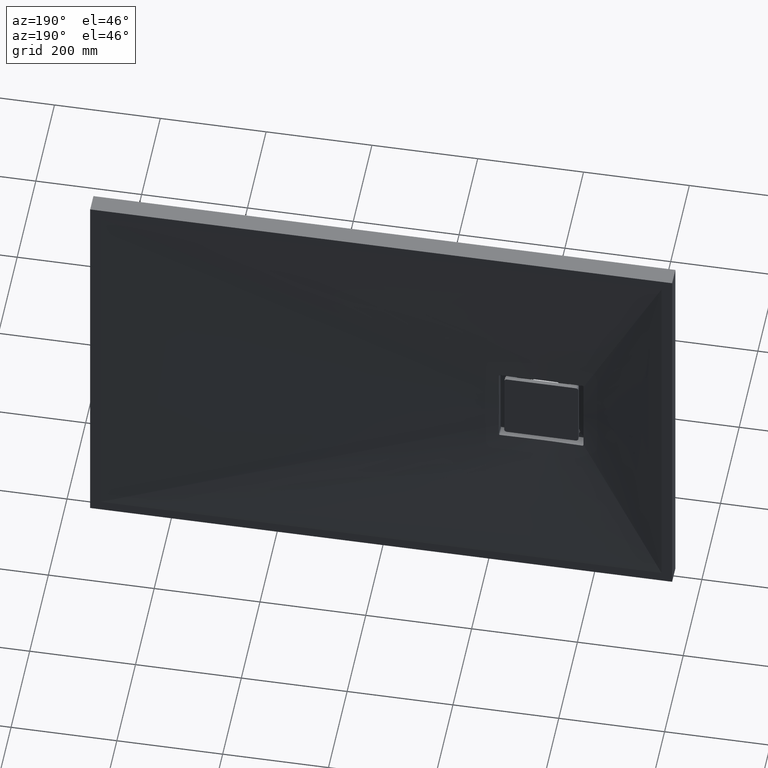
[diagram: clean part render]
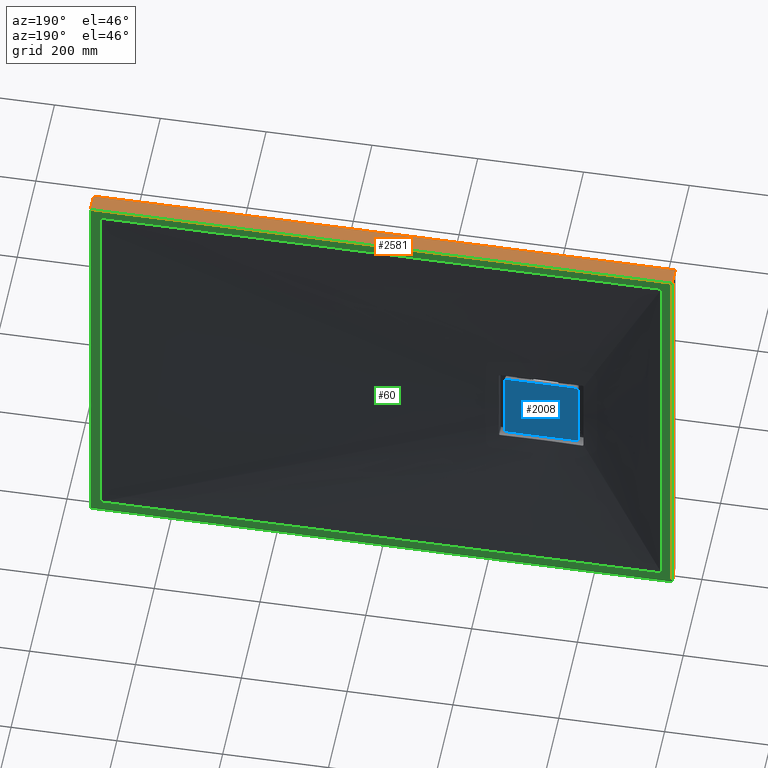
[diagram: same view with three faces highlighted in distinct colors, each labeled with its STEP entity id]
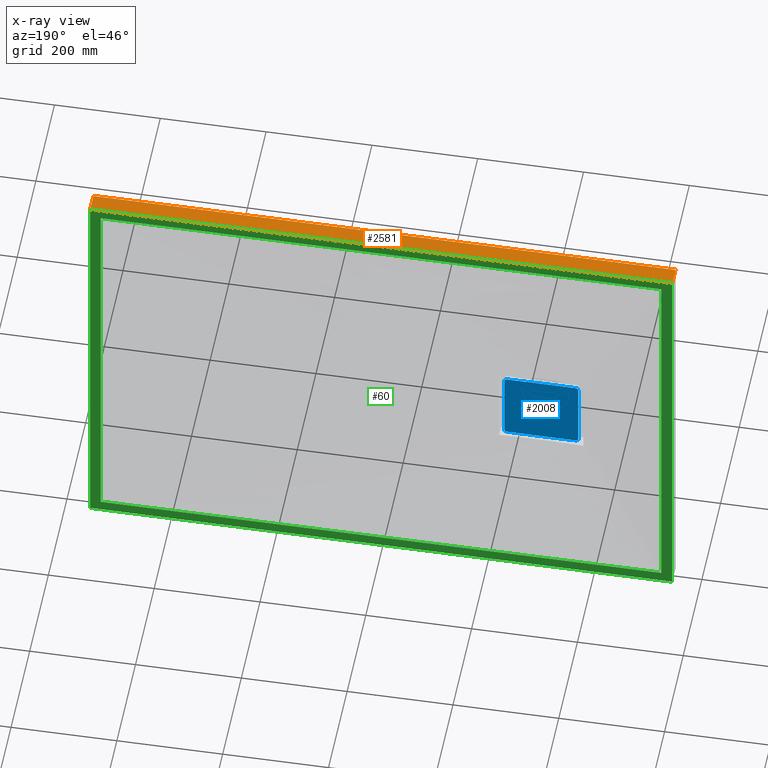
[diagram: x-ray of the same camera — body ghosted, the three highlighted faces saturated]
A machine part, auxiliary view with three faces highlighted in distinct colors.
The next image is the same camera in x-ray (body ghosted, the three faces saturated) — at least one of them is partly hidden behind the body in this view.
Their STEP definitions:

[orange] entity #2581 — the highlighted planar face has unit normal (0, 0, -1).
#209 = FACE_OUTER_BOUND ( 'NONE', #1620, .T. ) ;
#323 = CARTESIAN_POINT ( 'NONE',  ( -550.0000000000002300, 0.0000000000000000000, 400.0000000000001100 ) ) ;
#390 = VECTOR ( 'NONE', #1896, 1000.000000000000000 ) ;
#430 = LINE ( 'NONE', #914, #390 ) ;
#488 = CARTESIAN_POINT ( 'NONE',  ( -550.0000000000002300, 35.00000000000000000, 400.0000000000001100 ) ) ;
#549 = DIRECTION ( 'NONE',  ( 1.000000000000000000, 0.0000000000000000000, 0.0000000000000000000 ) ) ;
#600 = DIRECTION ( 'NONE',  ( -0.0000000000000000000, -1.000000000000000000, -0.0000000000000000000 ) ) ;
#914 = CARTESIAN_POINT ( 'NONE',  ( -550.0000000000002300, 35.00000000000000000, 400.0000000000001100 ) ) ;
#1162 = ORIENTED_EDGE ( 'NONE', *, *, #2722, .T. ) ;
#1450 = VERTEX_POINT ( 'NONE', #1609 ) ;
#1496 = CARTESIAN_POINT ( 'NONE',  ( 549.9999999999997700, 35.00000000000000000, 400.0000000000001100 ) ) ;
#1522 = VECTOR ( 'NONE', #549, 1000.000000000000000 ) ;
#1554 = VECTOR ( 'NONE', #600, 1000.000000000000000 ) ;
#1609 = CARTESIAN_POINT ( 'NONE',  ( -550.0000000000002300, 35.00000000000000000, 400.0000000000001100 ) ) ;
#1611 = EDGE_CURVE ( 'NONE', #1450, #1727, #430, .T. ) ;
#1620 = EDGE_LOOP ( 'NONE', ( #1162, #2019, #3139, #1754 ) ) ;
#1718 = CARTESIAN_POINT ( 'NONE',  ( -550.0000000000002300, 0.0000000000000000000, 400.0000000000001100 ) ) ;
#1727 = VERTEX_POINT ( 'NONE', #1496 ) ;
#1754 = ORIENTED_EDGE ( 'NONE', *, *, #2271, .T. ) ;
#1896 = DIRECTION ( 'NONE',  ( 1.000000000000000000, 0.0000000000000000000, 0.0000000000000000000 ) ) ;
#1993 = PLANE ( 'NONE',  #2815 ) ;
#2019 = ORIENTED_EDGE ( 'NONE', *, *, #3145, .F. ) ;
#2050 = DIRECTION ( 'NONE',  ( -1.000000000000000000, 0.0000000000000000000, -0.0000000000000000000 ) ) ;
#2093 = VERTEX_POINT ( 'NONE', #323 ) ;
#2245 = DIRECTION ( 'NONE',  ( 0.0000000000000000000, 0.0000000000000000000, -1.000000000000000000 ) ) ;
#2271 = EDGE_CURVE ( 'NONE', #1450, #2093, #2368, .T. ) ;
#2330 = VERTEX_POINT ( 'NONE', #3110 ) ;
#2368 = LINE ( 'NONE', #3186, #1554 ) ;
#2523 = LINE ( 'NONE', #2832, #2957 ) ;
#2581 = ADVANCED_FACE ( 'NONE', ( #209 ), #1993, .F. ) ;
#2722 = EDGE_CURVE ( 'NONE', #2093, #2330, #3079, .T. ) ;
#2815 = AXIS2_PLACEMENT_3D ( 'NONE', #488, #2245, #2050 ) ;
#2832 = CARTESIAN_POINT ( 'NONE',  ( 549.9999999999997700, 35.00000000000000000, 400.0000000000001100 ) ) ;
#2835 = DIRECTION ( 'NONE',  ( -0.0000000000000000000, -1.000000000000000000, -0.0000000000000000000 ) ) ;
#2957 = VECTOR ( 'NONE', #2835, 1000.000000000000000 ) ;
#3079 = LINE ( 'NONE', #1718, #1522 ) ;
#3110 = CARTESIAN_POINT ( 'NONE',  ( 549.9999999999997700, 0.0000000000000000000, 400.0000000000001100 ) ) ;
#3139 = ORIENTED_EDGE ( 'NONE', *, *, #1611, .F. ) ;
#3145 = EDGE_CURVE ( 'NONE', #1727, #2330, #2523, .T. ) ;
#3186 = CARTESIAN_POINT ( 'NONE',  ( -550.0000000000002300, 35.00000000000000000, 400.0000000000001100 ) ) ;

[blue] entity #2008 — the highlighted planar face has unit normal (0, -1, 0).
#111 = FACE_OUTER_BOUND ( 'NONE', #2211, .T. ) ;
#261 = CIRCLE ( 'NONE', #3230, 5.000000000000004400 ) ;
#299 = ORIENTED_EDGE ( 'NONE', *, *, #2445, .T. ) ;
#328 = LINE ( 'NONE', #2879, #334 ) ;
#334 = VECTOR ( 'NONE', #2366, 1000.000000000000000 ) ;
#361 = LINE ( 'NONE', #3189, #2247 ) ;
#363 = VECTOR ( 'NONE', #2110, 1000.000000000000000 ) ;
#368 = LINE ( 'NONE', #2427, #363 ) ;
#597 = DIRECTION ( 'NONE',  ( 0.0000000000000000000, 0.0000000000000000000, 1.000000000000000000 ) ) ;
#604 = DIRECTION ( 'NONE',  ( 0.0000000000000000000, 1.000000000000000000, 0.0000000000000000000 ) ) ;
#607 = CARTESIAN_POINT ( 'NONE',  ( -235.0000000000002600, 20.00000000000000000, 65.00000000000009900 ) ) ;
#619 = PLANE ( 'NONE',  #3073 ) ;
#694 = CARTESIAN_POINT ( 'NONE',  ( -235.0000000000002600, 20.00000000000000000, 70.00000000000009900 ) ) ;
#722 = CIRCLE ( 'NONE', #2377, 5.000000000000004400 ) ;
#799 = DIRECTION ( 'NONE',  ( 0.0000000000000000000, -0.0000000000000000000, -1.000000000000000000 ) ) ;
#802 = DIRECTION ( 'NONE',  ( 0.0000000000000000000, -1.000000000000000000, 0.0000000000000000000 ) ) ;
#817 = CARTESIAN_POINT ( 'NONE',  ( -365.0000000000002800, 20.00000000000000000, 65.00000000000011400 ) ) ;
#827 = EDGE_CURVE ( 'NONE', #2311, #1538, #973, .T. ) ;
#829 = CARTESIAN_POINT ( 'NONE',  ( -365.0000000000002800, 20.00000000000000000, 70.00000000000011400 ) ) ;
#876 = ORIENTED_EDGE ( 'NONE', *, *, #3039, .T. ) ;
#973 = CIRCLE ( 'NONE', #1858, 5.000000000000018700 ) ;
#1015 = DIRECTION ( 'NONE',  ( 0.0000000000000000000, 0.0000000000000000000, -1.000000000000000000 ) ) ;
#1180 = EDGE_CURVE ( 'NONE', #3025, #2650, #722, .T. ) ;
#1286 = CARTESIAN_POINT ( 'NONE',  ( -230.0000000000002600, 20.00000000000000000, 65.00000000000009900 ) ) ;
#1306 = CARTESIAN_POINT ( 'NONE',  ( -370.0000000000002800, 20.00000000000000000, 65.00000000000011400 ) ) ;
#1365 = CARTESIAN_POINT ( 'NONE',  ( -235.0000000000002600, 20.00000000000000000, -64.99999999999987200 ) ) ;
#1367 = CARTESIAN_POINT ( 'NONE',  ( -230.0000000000002600, 20.00000000000000000, 65.00000000000009900 ) ) ;
#1449 = ORIENTED_EDGE ( 'NONE', *, *, #1673, .T. ) ;
#1455 = CARTESIAN_POINT ( 'NONE',  ( -235.0000000000002600, 20.00000000000000000, -69.99999999999990100 ) ) ;
#1538 = VERTEX_POINT ( 'NONE', #1455 ) ;
#1642 = EDGE_CURVE ( 'NONE', #2650, #2370, #368, .T. ) ;
#1673 = EDGE_CURVE ( 'NONE', #1956, #2041, #328, .T. ) ;
#1858 = AXIS2_PLACEMENT_3D ( 'NONE', #1365, #3077, #3140 ) ;
#1956 = VERTEX_POINT ( 'NONE', #829 ) ;
#2008 = ADVANCED_FACE ( 'NONE', ( #111 ), #619, .F. ) ;
#2017 = ORIENTED_EDGE ( 'NONE', *, *, #1180, .T. ) ;
#2035 = EDGE_CURVE ( 'NONE', #2041, #3233, #261, .T. ) ;
#2041 = VERTEX_POINT ( 'NONE', #694 ) ;
#2110 = DIRECTION ( 'NONE',  ( -0.0000000000000000000, -0.0000000000000000000, 1.000000000000000000 ) ) ;
#2118 = CARTESIAN_POINT ( 'NONE',  ( -365.0000000000002800, 20.00000000000000000, -64.99999999999988600 ) ) ;
#2163 = CARTESIAN_POINT ( 'NONE',  ( -370.0000000000002800, 20.00000000000000000, -64.99999999999988600 ) ) ;
#2211 = EDGE_LOOP ( 'NONE', ( #299, #1449, #2410, #876, #2962, #3056, #2017, #2712 ) ) ;
#2212 = DIRECTION ( 'NONE',  ( 0.0000000000000000000, 1.000000000000000000, -0.0000000000000000000 ) ) ;
#2215 = DIRECTION ( 'NONE',  ( 0.0000000000000000000, 0.0000000000000000000, -1.000000000000000000 ) ) ;
#2247 = VECTOR ( 'NONE', #3174, 1000.000000000000000 ) ;
#2253 = LINE ( 'NONE', #1286, #2333 ) ;
#2256 = AXIS2_PLACEMENT_3D ( 'NONE', #2713, #2385, #1015 ) ;
#2268 = DIRECTION ( 'NONE',  ( 0.0000000000000000000, 0.0000000000000000000, -1.000000000000000000 ) ) ;
#2281 = CARTESIAN_POINT ( 'NONE',  ( -365.0000000000002800, 20.00000000000000000, -69.99999999999990100 ) ) ;
#2311 = VERTEX_POINT ( 'NONE', #3162 ) ;
#2333 = VECTOR ( 'NONE', #2268, 1000.000000000000000 ) ;
#2366 = DIRECTION ( 'NONE',  ( 1.000000000000000000, 0.0000000000000000000, -1.067522139062650400E-016 ) ) ;
#2370 = VERTEX_POINT ( 'NONE', #1306 ) ;
#2377 = AXIS2_PLACEMENT_3D ( 'NONE', #2118, #2212, #2215 ) ;
#2385 = DIRECTION ( 'NONE',  ( 0.0000000000000000000, 1.000000000000000000, -0.0000000000000000000 ) ) ;
#2410 = ORIENTED_EDGE ( 'NONE', *, *, #2035, .T. ) ;
#2427 = CARTESIAN_POINT ( 'NONE',  ( -370.0000000000002800, 20.00000000000000000, 65.00000000000011400 ) ) ;
#2445 = EDGE_CURVE ( 'NONE', #2370, #1956, #3115, .T. ) ;
#2562 = EDGE_CURVE ( 'NONE', #1538, #3025, #361, .T. ) ;
#2650 = VERTEX_POINT ( 'NONE', #2163 ) ;
#2712 = ORIENTED_EDGE ( 'NONE', *, *, #1642, .T. ) ;
#2713 = CARTESIAN_POINT ( 'NONE',  ( -365.0000000000002800, 20.00000000000000000, 65.00000000000011400 ) ) ;
#2879 = CARTESIAN_POINT ( 'NONE',  ( -365.0000000000002800, 20.00000000000000000, 70.00000000000011400 ) ) ;
#2962 = ORIENTED_EDGE ( 'NONE', *, *, #827, .T. ) ;
#3025 = VERTEX_POINT ( 'NONE', #2281 ) ;
#3039 = EDGE_CURVE ( 'NONE', #3233, #2311, #2253, .T. ) ;
#3056 = ORIENTED_EDGE ( 'NONE', *, *, #2562, .T. ) ;
#3073 = AXIS2_PLACEMENT_3D ( 'NONE', #817, #802, #799 ) ;
#3077 = DIRECTION ( 'NONE',  ( 0.0000000000000000000, 1.000000000000000000, -0.0000000000000000000 ) ) ;
#3115 = CIRCLE ( 'NONE', #2256, 5.000000000000004400 ) ;
#3140 = DIRECTION ( 'NONE',  ( 0.0000000000000000000, 0.0000000000000000000, -1.000000000000000000 ) ) ;
#3162 = CARTESIAN_POINT ( 'NONE',  ( -230.0000000000002600, 20.00000000000000000, -64.99999999999987200 ) ) ;
#3174 = DIRECTION ( 'NONE',  ( -1.000000000000000000, -0.0000000000000000000, -0.0000000000000000000 ) ) ;
#3189 = CARTESIAN_POINT ( 'NONE',  ( -365.0000000000002800, 20.00000000000000000, -69.99999999999990100 ) ) ;
#3230 = AXIS2_PLACEMENT_3D ( 'NONE', #607, #604, #597 ) ;
#3233 = VERTEX_POINT ( 'NONE', #1367 ) ;

[green] entity #60 — the highlighted planar face has unit normal (0, 1, 0).
#30 = LINE ( 'NONE', #826, #55 ) ;
#55 = VECTOR ( 'NONE', #2538, 1000.000000000000000 ) ;
#60 = ADVANCED_FACE ( 'NONE', ( #1369, #1350 ), #1559, .T. ) ;
#118 = ORIENTED_EDGE ( 'NONE', *, *, #3158, .F. ) ;
#151 = VECTOR ( 'NONE', #1552, 1000.000000000000000 ) ;
#159 = LINE ( 'NONE', #1551, #151 ) ;
#176 = CARTESIAN_POINT ( 'NONE',  ( -530.0000000000003400, 35.00000000000000000, -379.9999999999998900 ) ) ;
#184 = ORIENTED_EDGE ( 'NONE', *, *, #1611, .T. ) ;
#390 = VECTOR ( 'NONE', #1896, 1000.000000000000000 ) ;
#430 = LINE ( 'NONE', #914, #390 ) ;
#459 = VECTOR ( 'NONE', #803, 1000.000000000000000 ) ;
#735 = VECTOR ( 'NONE', #2433, 1000.000000000000000 ) ;
#765 = LINE ( 'NONE', #2453, #735 ) ;
#803 = DIRECTION ( 'NONE',  ( 1.460819769243627100E-016, 0.0000000000000000000, 1.000000000000000000 ) ) ;
#826 = CARTESIAN_POINT ( 'NONE',  ( -550.0000000000003400, 35.00000000000000000, -399.9999999999998900 ) ) ;
#914 = CARTESIAN_POINT ( 'NONE',  ( -550.0000000000002300, 35.00000000000000000, 400.0000000000001100 ) ) ;
#1011 = DIRECTION ( 'NONE',  ( -1.000000000000000000, 0.0000000000000000000, 0.0000000000000000000 ) ) ;
#1138 = LINE ( 'NONE', #1809, #459 ) ;
#1144 = EDGE_CURVE ( 'NONE', #1603, #1450, #765, .T. ) ;
#1222 = DIRECTION ( 'NONE',  ( -1.387778780781445700E-016, -0.0000000000000000000, -1.000000000000000000 ) ) ;
#1249 = CARTESIAN_POINT ( 'NONE',  ( 549.9999999999996600, 35.00000000000000000, -399.9999999999998900 ) ) ;
#1350 = FACE_OUTER_BOUND ( 'NONE', #1377, .T. ) ;
#1364 = CARTESIAN_POINT ( 'NONE',  ( 529.9999999999996600, 35.00000000000000000, -379.9999999999998900 ) ) ;
#1369 = FACE_BOUND ( 'NONE', #1427, .T. ) ;
#1377 = EDGE_LOOP ( 'NONE', ( #1843, #184, #3009, #1494 ) ) ;
#1407 = ORIENTED_EDGE ( 'NONE', *, *, #2743, .F. ) ;
#1427 = EDGE_LOOP ( 'NONE', ( #118, #2561, #1778, #1407 ) ) ;
#1438 = CARTESIAN_POINT ( 'NONE',  ( -550.0000000000003400, 35.00000000000000000, -399.9999999999998900 ) ) ;
#1450 = VERTEX_POINT ( 'NONE', #1609 ) ;
#1494 = ORIENTED_EDGE ( 'NONE', *, *, #3268, .T. ) ;
#1496 = CARTESIAN_POINT ( 'NONE',  ( 549.9999999999997700, 35.00000000000000000, 400.0000000000001100 ) ) ;
#1523 = DIRECTION ( 'NONE',  ( 0.0000000000000000000, 1.000000000000000000, 0.0000000000000000000 ) ) ;
#1548 = CARTESIAN_POINT ( 'NONE',  ( -550.0000000000002300, 35.00000000000000000, 400.0000000000001100 ) ) ;
#1551 = CARTESIAN_POINT ( 'NONE',  ( -530.0000000000002300, 35.00000000000000000, 380.0000000000001100 ) ) ;
#1552 = DIRECTION ( 'NONE',  ( 1.000000000000000000, 0.0000000000000000000, 0.0000000000000000000 ) ) ;
#1559 = PLANE ( 'NONE',  #2471 ) ;
#1587 = DIRECTION ( 'NONE',  ( 0.0000000000000000000, -0.0000000000000000000, 1.000000000000000000 ) ) ;
#1603 = VERTEX_POINT ( 'NONE', #1438 ) ;
#1609 = CARTESIAN_POINT ( 'NONE',  ( -550.0000000000002300, 35.00000000000000000, 400.0000000000001100 ) ) ;
#1611 = EDGE_CURVE ( 'NONE', #1450, #1727, #430, .T. ) ;
#1632 = VERTEX_POINT ( 'NONE', #1743 ) ;
#1649 = VERTEX_POINT ( 'NONE', #2664 ) ;
#1654 = VECTOR ( 'NONE', #1222, 1000.000000000000000 ) ;
#1704 = LINE ( 'NONE', #1249, #1654 ) ;
#1727 = VERTEX_POINT ( 'NONE', #1496 ) ;
#1743 = CARTESIAN_POINT ( 'NONE',  ( 529.9999999999997700, 35.00000000000000000, 380.0000000000001100 ) ) ;
#1778 = ORIENTED_EDGE ( 'NONE', *, *, #1935, .F. ) ;
#1788 = VERTEX_POINT ( 'NONE', #176 ) ;
#1809 = CARTESIAN_POINT ( 'NONE',  ( -530.0000000000003400, 35.00000000000000000, -379.9999999999998900 ) ) ;
#1843 = ORIENTED_EDGE ( 'NONE', *, *, #1144, .T. ) ;
#1896 = DIRECTION ( 'NONE',  ( 1.000000000000000000, 0.0000000000000000000, 0.0000000000000000000 ) ) ;
#1935 = EDGE_CURVE ( 'NONE', #1649, #1632, #159, .T. ) ;
#1954 = CARTESIAN_POINT ( 'NONE',  ( 549.9999999999996600, 35.00000000000000000, -399.9999999999998900 ) ) ;
#2433 = DIRECTION ( 'NONE',  ( 1.387778780781445700E-016, 0.0000000000000000000, 1.000000000000000000 ) ) ;
#2453 = CARTESIAN_POINT ( 'NONE',  ( -550.0000000000003400, 35.00000000000000000, -399.9999999999998900 ) ) ;
#2471 = AXIS2_PLACEMENT_3D ( 'NONE', #1548, #1523, #1587 ) ;
#2538 = DIRECTION ( 'NONE',  ( -1.000000000000000000, -0.0000000000000000000, -0.0000000000000000000 ) ) ;
#2561 = ORIENTED_EDGE ( 'NONE', *, *, #3183, .F. ) ;
#2664 = CARTESIAN_POINT ( 'NONE',  ( -530.0000000000002300, 35.00000000000000000, 380.0000000000001100 ) ) ;
#2696 = VECTOR ( 'NONE', #1011, 1000.000000000000000 ) ;
#2743 = EDGE_CURVE ( 'NONE', #1788, #1649, #1138, .T. ) ;
#2760 = VERTEX_POINT ( 'NONE', #1364 ) ;
#2851 = CARTESIAN_POINT ( 'NONE',  ( 529.9999999999996600, 35.00000000000000000, -379.9999999999998900 ) ) ;
#2860 = LINE ( 'NONE', #2851, #2696 ) ;
#2884 = DIRECTION ( 'NONE',  ( -1.460819769243627100E-016, 0.0000000000000000000, -1.000000000000000000 ) ) ;
#2892 = CARTESIAN_POINT ( 'NONE',  ( 529.9999999999997700, 35.00000000000000000, 380.0000000000001100 ) ) ;
#3006 = LINE ( 'NONE', #2892, #3089 ) ;
#3009 = ORIENTED_EDGE ( 'NONE', *, *, #3021, .T. ) ;
#3021 = EDGE_CURVE ( 'NONE', #1727, #3271, #1704, .T. ) ;
#3089 = VECTOR ( 'NONE', #2884, 1000.000000000000000 ) ;
#3158 = EDGE_CURVE ( 'NONE', #2760, #1788, #2860, .T. ) ;
#3183 = EDGE_CURVE ( 'NONE', #1632, #2760, #3006, .T. ) ;
#3268 = EDGE_CURVE ( 'NONE', #3271, #1603, #30, .T. ) ;
#3271 = VERTEX_POINT ( 'NONE', #1954 ) ;